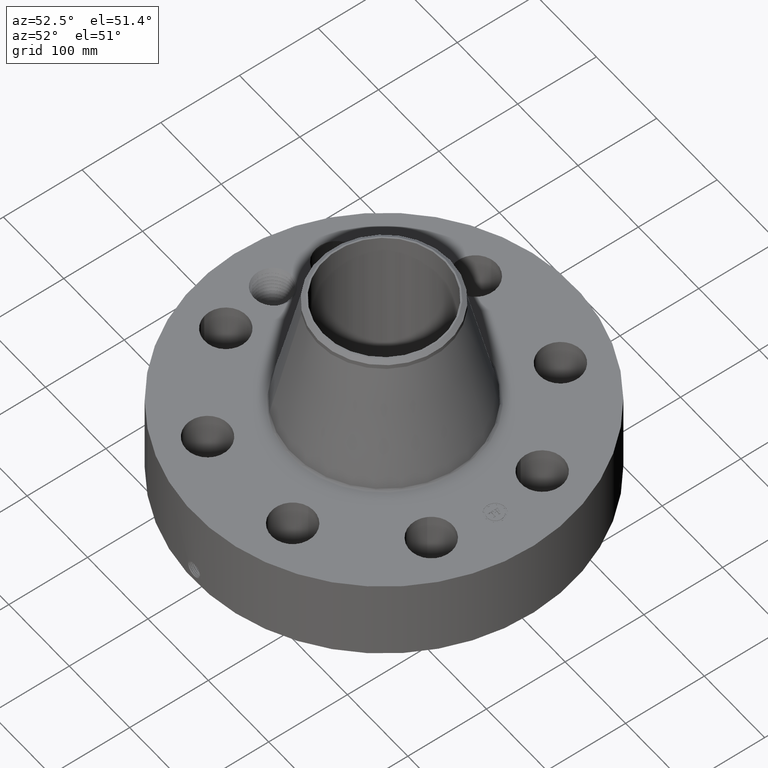
[diagram: clean part render]
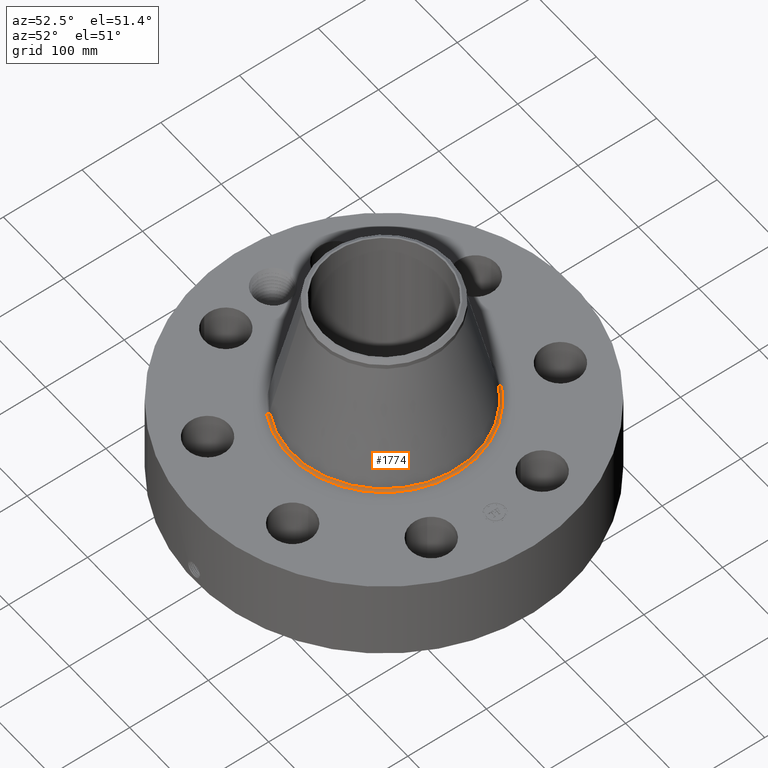
[diagram: same view with one face highlighted and labeled with its STEP entity id]
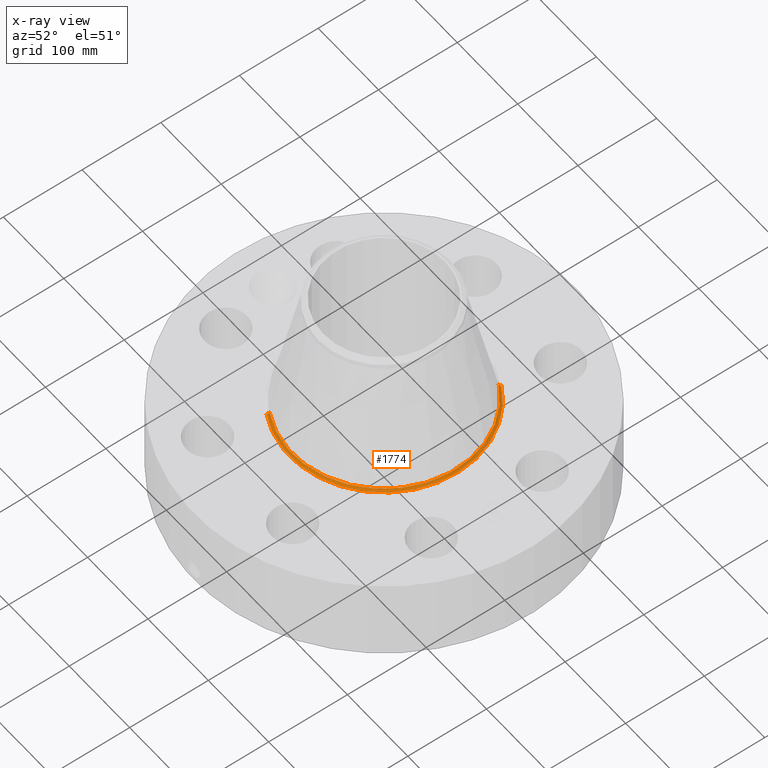
[diagram: x-ray of the same camera — body ghosted, the highlighted face saturated]
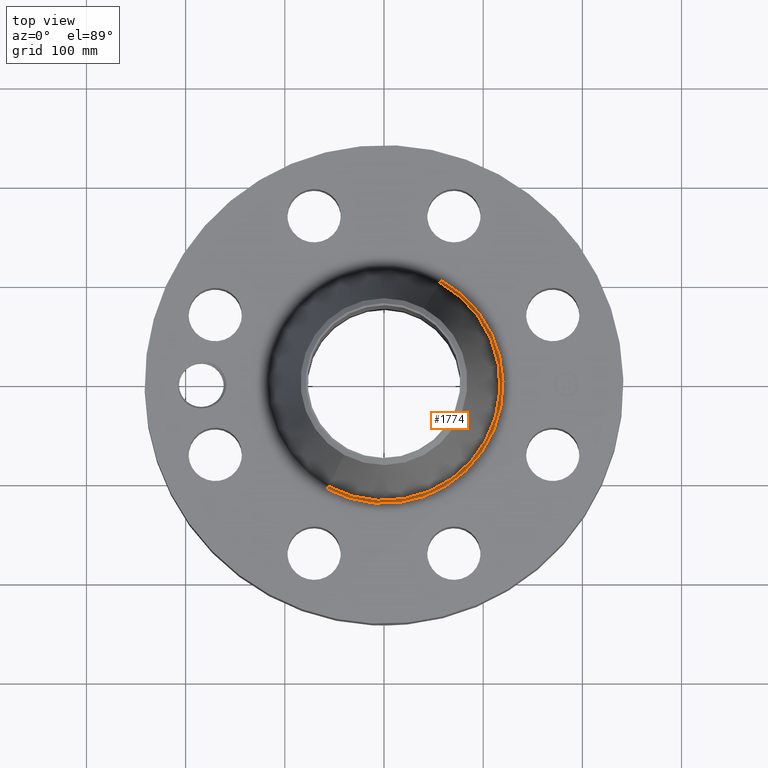
[diagram: same view with one face highlighted and labeled with its STEP entity id]
A machine part, auxiliary view. The second image highlights one B-rep face of the part: STEP entity #1774.
The next image is the same camera in x-ray: the body ghosted, the highlighted face saturated — about 0% of this face is hidden behind the body in this view.
A second angle (top view) of the same face is appended — the face is thin or edge-on in the first view.
In plain terms, the highlighted toroidal blend (fillet) surface has major radius 119.939 mm and minor (blend) radius 3.048 mm.
Its self-contained STEP definition (entity closure, byte-faithful):
#600=AXIS2_PLACEMENT_3D('Circle Axis2P3D',#598,#599,$) ;
#1747=AXIS2_PLACEMENT_3D('Torus Axis2P3D',#1744,#1745,#1746) ;
#1751=AXIS2_PLACEMENT_3D('Circle Axis2P3D',#1749,#1750,$) ;
#1758=AXIS2_PLACEMENT_3D('Circle Axis2P3D',#1756,#1757,$) ;
#1765=AXIS2_PLACEMENT_3D('Circle Axis2P3D',#1763,#1764,$) ;
#593=CARTESIAN_POINT('Vertex',(-2.26384271751,-4.1439362983,4.50000000002)) ;
#595=CARTESIAN_POINT('Vertex',(2.26384271751,4.1439362983,4.50000000002)) ;
#598=CARTESIAN_POINT('Axis2P3D Location',(0.,0.,4.50000000002)) ;
#1744=CARTESIAN_POINT('Axis2P3D Location',(0.,0.,4.62000000002)) ;
#1749=CARTESIAN_POINT('Axis2P3D Location',(2.26384271751,4.1439362983,4.62000000002)) ;
#1753=CARTESIAN_POINT('Vertex',(2.20759109215,4.04096838875,4.59483327103)) ;
#1756=CARTESIAN_POINT('Axis2P3D Location',(0.,0.,4.59483327103)) ;
#1760=CARTESIAN_POINT('Vertex',(-2.20759109215,-4.04096838875,4.59483327103)) ;
#1763=CARTESIAN_POINT('Axis2P3D Location',(-2.26384271751,-4.1439362983,4.62000000002)) ;
#599=DIRECTION('Axis2P3D Direction',(0.,0.,-0.0393700787402)) ;
#1745=DIRECTION('Axis2P3D Direction',(0.,0.,-0.0393700787402)) ;
#1746=DIRECTION('Axis2P3D XDirection',(-0.0188750212049,-0.0345504945626,0.)) ;
#1750=DIRECTION('Axis2P3D Direction',(-0.0345504945626,0.0188750212049,0.)) ;
#1757=DIRECTION('Axis2P3D Direction',(0.,0.,-0.0393700787402)) ;
#1764=DIRECTION('Axis2P3D Direction',(0.0345504945626,-0.0188750212049,0.)) ;
#1769=ORIENTED_EDGE('',*,*,#602,.F.) ;
#1770=ORIENTED_EDGE('',*,*,#1755,.T.) ;
#1771=ORIENTED_EDGE('',*,*,#1762,.T.) ;
#1772=ORIENTED_EDGE('',*,*,#1767,.F.) ;
#1774=ADVANCED_FACE('PartBody',(#1773),#1748,.F.) ;
#601=CIRCLE('generated circle',#600,4.72199024713) ;
#1752=CIRCLE('generated circle',#1751,0.12) ;
#1759=CIRCLE('generated circle',#1758,4.60465893949) ;
#1766=CIRCLE('generated circle',#1765,0.12) ;
#1748=TOROIDAL_SURFACE('homeo Torus',#1747,4.72199024713,0.12) ;
#602=EDGE_CURVE('',#596,#594,#601,.T.) ;
#1755=EDGE_CURVE('',#596,#1754,#1752,.T.) ;
#1762=EDGE_CURVE('',#1754,#1761,#1759,.T.) ;
#1767=EDGE_CURVE('',#594,#1761,#1766,.T.) ;
#1768=EDGE_LOOP('',(#1769,#1770,#1771,#1772)) ;
#1773=FACE_OUTER_BOUND('',#1768,.T.) ;
#594=VERTEX_POINT('',#593) ;
#596=VERTEX_POINT('',#595) ;
#1754=VERTEX_POINT('',#1753) ;
#1761=VERTEX_POINT('',#1760) ;